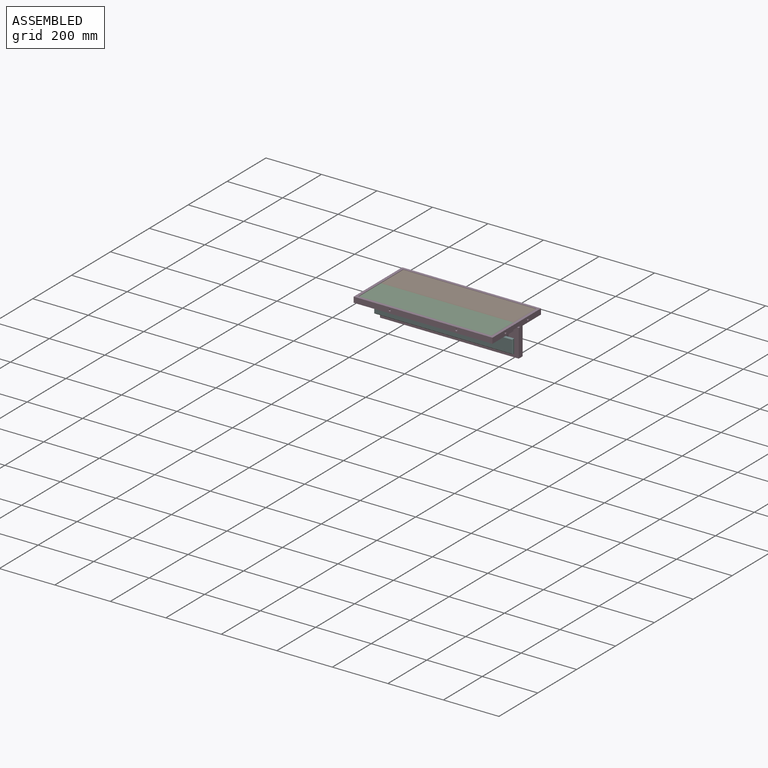
[diagram: assembled view]
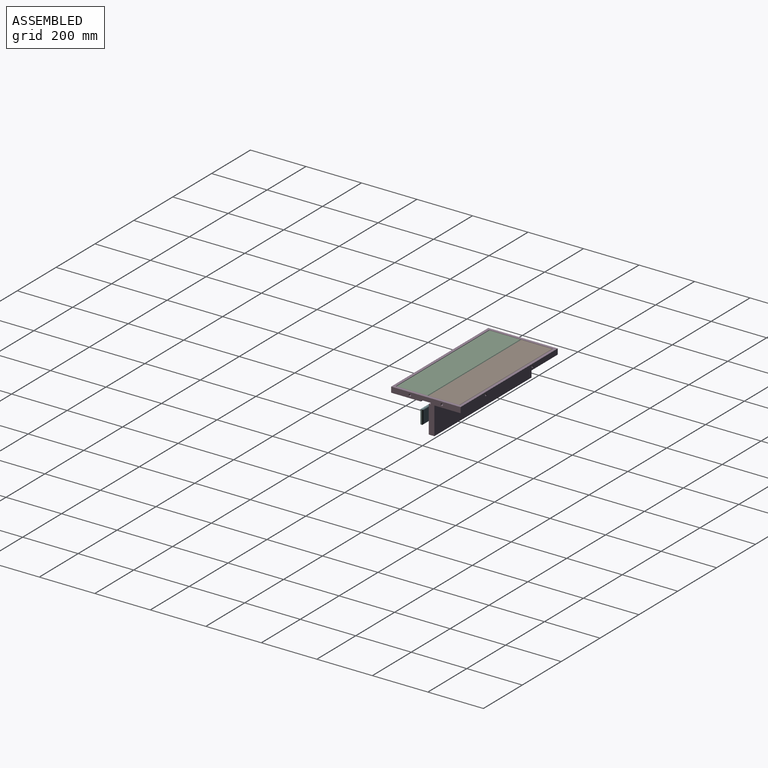
[diagram: assembled view, second angle]
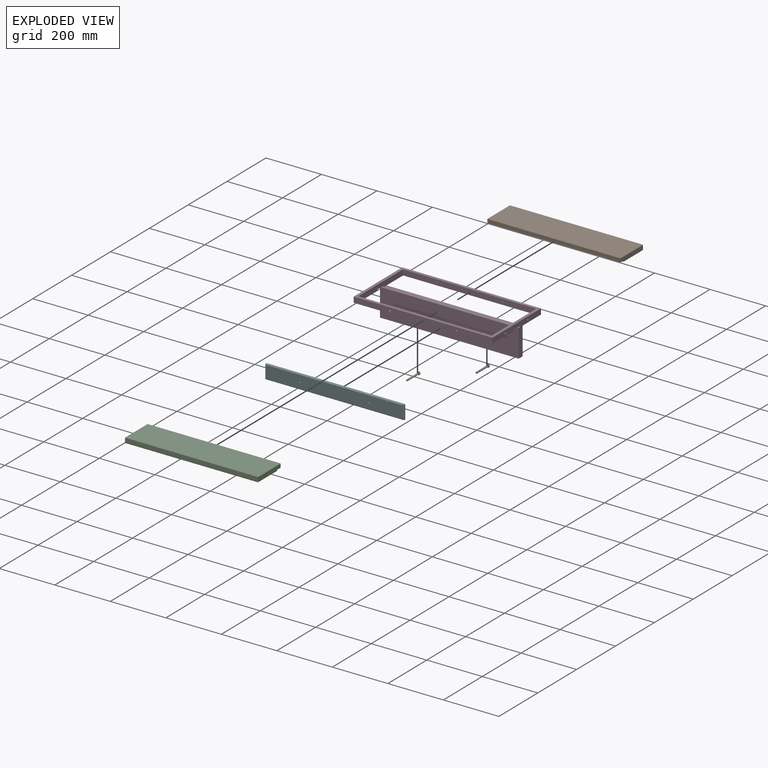
[diagram: exploded view]
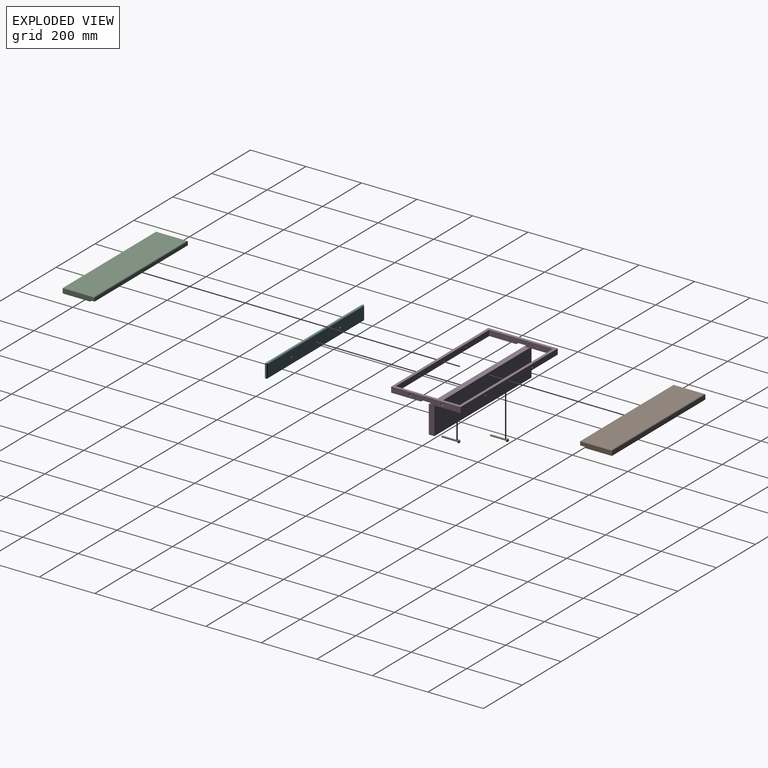
[diagram: exploded view, second angle]
ASSEMBLY  parts=6 mates=6
PART A: 5 faces, bbox 12x12x65 mm
  f0: cylinder r=3mm len=60mm, axis (0,0,-1), area 1131mm2, adj f1,f3
  f1: plane 6x6mm, normal (0,0,1), area 28.3mm2, adj f0
  f2: plane 0.17x0.17mm, normal (0,0,-1), area 0mm2, adj f4
  f3: plane 12x12mm, normal (0,0,1), area 84.8mm2, adj f0,f4
  f4: torus R=0.08mm, axis (0,0,1), area 192.9mm2, adj f2,f3
PART B: 15 faces, bbox 480x115x20 mm
  f0: plane 480x13mm, normal (0,1,0), area 6240mm2, adj f1,f2,f7,f12
  f1: plane 115x16mm, normal (-1,0,0), area 1787.5mm2, adj f0,f3,f6,f7,f8,f11
  f2: plane 115x16mm, normal (1,0,0), area 1787.5mm2, adj f0,f3,f6,f7,f9,f14
  f3: plane 480x16mm, normal (0,-1,0), area 7680mm2, adj f1,f2,f10,f13
  f4: plane 476x95.5mm, normal (0,0,1), area 45458mm2, adj f6,f8,f9,f10
  f5: plane 476x111mm, normal (0,0,-1), area 52836mm2, adj f11,f12,f13,f14
  f6: plane 480x5mm, normal (0,1,0), area 2396mm2, adj f1,f2,f4,f7,f8,f9
  f7: plane 480x17.5mm, normal (0,0,1), area 8400mm2, adj f0,f1,f2,f6
  f8: plane 97.5x2mm, normal (-0.71,0,0.71), area 272.9mm2, adj f1,f4,f6,f10
  f9: plane 97.5x2mm, normal (0.71,0,0.71), area 272.9mm2, adj f2,f4,f6,f10
  f10: plane 480x2mm, normal (0,-0.71,0.71), area 1352mm2, adj f3,f4,f8,f9
  f11: plane 115x2mm, normal (-0.71,0,-0.71), area 319.6mm2, adj f1,f5,f12,f13
  f12: plane 480x2mm, normal (0,0.71,-0.71), area 1352mm2, adj f0,f5,f11,f14
  f13: plane 480x2mm, normal (0,-0.71,-0.71), area 1352mm2, adj f3,f5,f11,f14
  f14: plane 115x2mm, normal (0.71,0,-0.71), area 319.6mm2, adj f2,f5,f12,f13
PART C: same geometry as B
PART D: 39 faces, bbox 500x250x120 mm
  f0: plane 500x94.5mm, normal (0,0,-1), area 6690mm2, adj f1,f2,f3,f4,f7,f9,f18
  f1: plane 250x120mm, normal (1,0,0), area 6724.5mm2, adj f0,f5,f6,f7,f8,f11,f12,f13
  f2: plane 250x120mm, normal (-1,0,0), area 6724.5mm2, adj f0,f5,f6,f7,f8,f14,f15,f16
  f3: plane 230x20mm, normal (1,0,0), area 4399.9mm2, adj f0,f5,f6,f9,f10,f14,f15,f16
  f4: plane 230x20mm, normal (-1,0,0), area 4399.9mm2, adj f0,f5,f6,f9,f10,f11,f12,f13
  f5: plane 500x250mm, normal (0,0,1), area 14600mm2, adj f1,f2,f3,f4,f7,f8,f9,f10
  f6: plane 500x107.5mm, normal (0,0,-1), area 6950mm2, adj f1,f2,f3,f4,f8,f10,f11,f16
  f7: plane 500x20mm, normal (0,1,0), area 9899.5mm2, adj f0,f1,f2,f5,f31,f32
  f8: plane 500x20mm, normal (0,-1,0), area 9899.5mm2, adj f1,f2,f5,f6,f33,f34
  f9: plane 480x20mm, normal (0,-1,0), area 9574.9mm2, adj f0,f3,f4,f5,f29,f30
  f10: plane 480x20mm, normal (0,1,0), area 9574.9mm2, adj f3,f4,f5,f6,f27,f28
  f11: plane 10x5mm, normal (0,1,0), area 50mm2, adj f1,f4,f6,f12
  f12: plane 35x10mm, normal (0,0,-1), area 350mm2, adj f1,f4,f11,f13
  f13: plane 10x5mm, normal (0,-1,0), area 50mm2, adj f1,f4,f12,f17
  f14: plane 10x5mm, normal (0,-1,0), area 50mm2, adj f2,f3,f15,f17
  f15: plane 35x10mm, normal (0,0,-1), area 350mm2, adj f2,f3,f14,f16
  f16: plane 10x5mm, normal (0,1,0), area 50mm2, adj f2,f3,f6,f15
  f17: plane 500x20mm, normal (0,0,1), area 9740mm2, adj f1,f2,f3,f4,f13,f14,f18,f19
  f18: plane 500x100mm, normal (0,1,0), area 49943.5mm2, adj f0,f1,f2,f17,f20,f21,f22
  f19: plane 500x100mm, normal (0,-1,0), area 49943.5mm2, adj f1,f2,f17,f20,f21,f22
  f20: plane 500x20mm, normal (0,0,-1), area 10000mm2, adj f1,f2,f18,f19
  f21: cylinder r=3mm len=20mm, axis (0,-1,0), area 377mm2, adj f18,f19
  f22: cylinder r=3mm len=20mm, axis (0,-1,0), area 377mm2, adj f18,f19
  f23: cylinder r=2mm len=8mm, axis (1,0,0), area 100.5mm2, adj f4,f36
  f24: cylinder r=2mm len=8mm, axis (1,0,0), area 100.5mm2, adj f4,f35
  f25: cylinder r=2mm len=8mm, axis (1,0,0), area 100.5mm2, adj f3,f37
  f26: cylinder r=2mm len=8mm, axis (1,0,0), area 100.5mm2, adj f3,f38
  f27: cylinder r=2mm len=8mm, axis (0,1,0), area 100.5mm2, adj f10,f34
  f28: cylinder r=2mm len=8mm, axis (0,1,0), area 100.5mm2, adj f10,f33
  f29: cylinder r=2mm len=8mm, axis (0,1,0), area 100.5mm2, adj f9,f31
  f30: cylinder r=2mm len=8mm, axis (0,1,0), area 100.5mm2, adj f9,f32
  f31: cone r=4mm half-angle=45deg, axis (0,1,0), area 53.3mm2, adj f7,f29
  f32: cone r=4mm half-angle=45deg, axis (0,1,0), area 53.3mm2, adj f7,f30
  f33: cone r=2mm half-angle=45deg, axis (0,-1,0), area 53.3mm2, adj f8,f28
  f34: cone r=2mm half-angle=45deg, axis (0,-1,0), area 53.3mm2, adj f8,f27
  f35: cone r=4mm half-angle=45deg, axis (1,0,0), area 53.3mm2, adj f1,f24
  f36: cone r=4mm half-angle=45deg, axis (1,0,0), area 53.3mm2, adj f1,f23
  f37: cone r=2mm half-angle=45deg, axis (-1,0,0), area 53.3mm2, adj f2,f25
  f38: cone r=2mm half-angle=45deg, axis (-1,0,0), area 53.3mm2, adj f2,f26
PART E: same geometry as A
PART F: 16 faces, bbox 500x10x50 mm
  f0: plane 496x46mm, normal (0,1,0), area 22759.5mm2, adj f6,f7,f8,f9,f10,f11
  f1: plane 50x6mm, normal (-1,0,0), area 300mm2, adj f4,f5,f11,f12
  f2: plane 496x46mm, normal (0,-1,0), area 22759.5mm2, adj f6,f7,f12,f13,f14,f15
  f3: plane 50x6mm, normal (1,0,0), area 300mm2, adj f4,f5,f8,f15
  f4: plane 500x6mm, normal (0,0,1), area 3000mm2, adj f1,f3,f9,f13
  f5: plane 500x6mm, normal (0,0,-1), area 3000mm2, adj f1,f3,f10,f14
  f6: cylinder r=3mm len=10mm, axis (0,-1,0), area 188.5mm2, adj f0,f2
  f7: cylinder r=3mm len=10mm, axis (0,-1,0), area 188.5mm2, adj f0,f2
  f8: plane 50x2mm, normal (0.71,0.71,0), area 135.8mm2, adj f0,f3,f9,f10
  f9: plane 500x2mm, normal (0,0.71,0.71), area 1408.6mm2, adj f0,f4,f8,f11
  f10: plane 500x2mm, normal (0,0.71,-0.71), area 1408.6mm2, adj f0,f5,f8,f11
  f11: plane 50x2mm, normal (-0.71,0.71,0), area 135.8mm2, adj f0,f1,f9,f10
  f12: plane 50x2mm, normal (-0.71,-0.71,0), area 135.8mm2, adj f1,f2,f13,f14
  f13: plane 500x2mm, normal (0,-0.71,0.71), area 1408.6mm2, adj f2,f4,f12,f15
  f14: plane 500x2mm, normal (0,-0.71,-0.71), area 1408.6mm2, adj f2,f5,f12,f15
  f15: plane 50x2mm, normal (0.71,-0.71,0), area 135.8mm2, adj f2,f3,f13,f14
PLACE A rot(axis=(1,0,0),90deg) t=(99.9,0.53,-33.21)mm
PLACE B rot(axis=(1,0,0),180deg) t=(-25.1,27.53,36.79)mm
PLACE C rot(axis=(0,-1,0),180deg) t=(-25.1,-87.47,36.79)mm
PLACE D t=(-25.1,-29.97,16.79)mm fixed
PLACE E rot(axis=(1,0,0),90deg) t=(-150.1,0.53,-33.21)mm
PLACE F t=(-25.1,-46,-58.21)mm
MATE fastened D.f9 <-> B.f3  axis (0,-1,0) through (-25.1,85.03,26.79)mm
MATE fastened E.f0 <-> D.f22  axis (0,1,0) through (-150.1,0.53,-33.21)mm
MATE slider A.f0 <-> F.f6  axis (0,1,0) through (99.9,-29.47,-33.21)mm
MATE slider E.f0 <-> F.f7  axis (0,1,0) through (-150.1,-59.47,-33.21)mm
MATE fastened C.f0 <-> B.f0  axis (0,1,0) through (-25.1,-29.97,28.29)mm
MATE fastened A.f4 <-> D.f21  axis (0,-1,0) through (99.9,0.53,-33.21)mm
